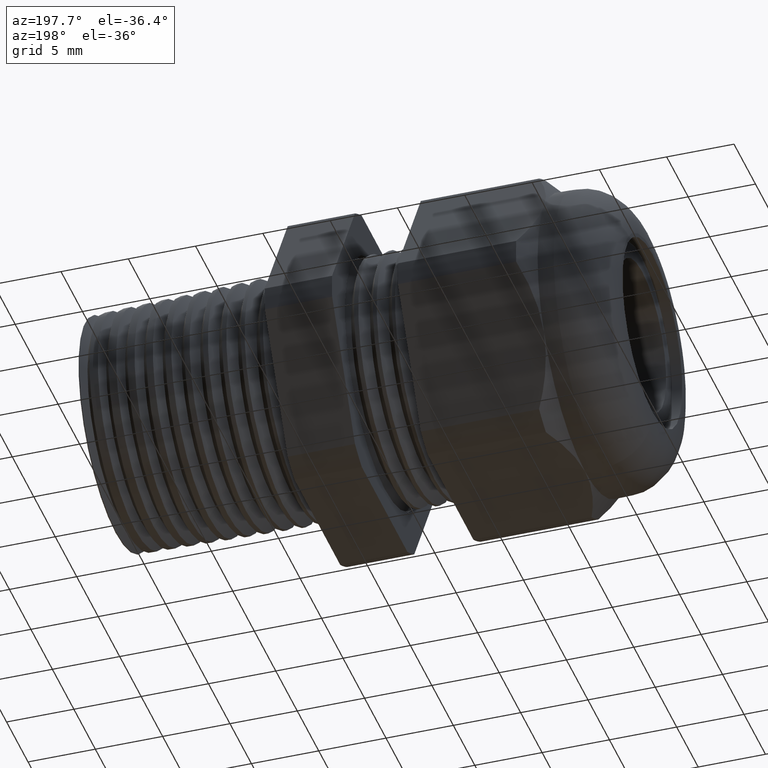
[diagram: clean part render]
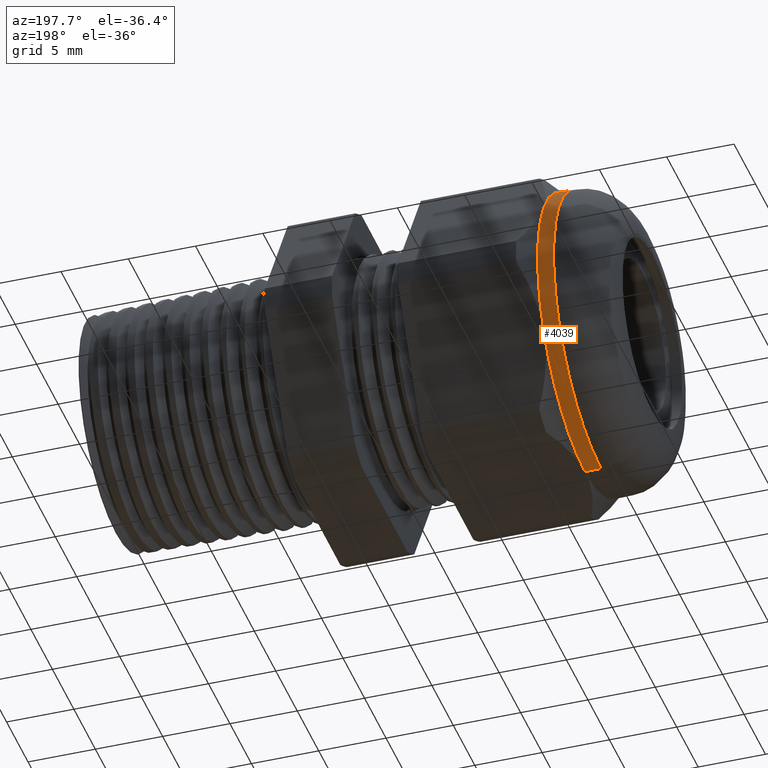
[diagram: same view with one face highlighted and labeled with its STEP entity id]
A machine part, auxiliary view. The second image highlights one B-rep face of the part: STEP entity #4039.
In plain terms, the highlighted cylindrical surface (partial cylindrical patch) has radius 11.049 mm, axis along (1, 0, 0).
Its self-contained STEP definition (entity closure, byte-faithful):
#840 = EDGE_CURVE ( 'NONE', #841, #842, #2678, .T. ) ;
#841 = VERTEX_POINT ( 'NONE', #2673 ) ;
#842 = VERTEX_POINT ( 'NONE', #2672 ) ;
#2672 = CARTESIAN_POINT ( 'NONE',  ( -1.139999999999999900, 5.327213576290986400E-017, 0.4350000000000000000 ) ) ;
#2673 = CARTESIAN_POINT ( 'NONE',  ( -1.139999999999999900, 0.0000000000000000000, -0.4350000000000000000 ) ) ;
#2674 = DIRECTION ( 'NONE',  ( 0.0000000000000000000, 0.0000000000000000000, 1.000000000000000000 ) ) ;
#2675 = DIRECTION ( 'NONE',  ( 1.000000000000000000, 0.0000000000000000000, 0.0000000000000000000 ) ) ;
#2676 = CARTESIAN_POINT ( 'NONE',  ( -1.139999999999999900, 0.0000000000000000000, 0.0000000000000000000 ) ) ;
#2677 = AXIS2_PLACEMENT_3D ( 'NONE', #2676, #2675, #2674 ) ;
#2678 = CIRCLE ( 'NONE', #2677, 0.4350000000000000000 ) ;
#3450 = DIRECTION ( 'NONE',  ( 0.0000000000000000000, 0.0000000000000000000, -1.000000000000000000 ) ) ;
#3451 = DIRECTION ( 'NONE',  ( 1.000000000000000000, 0.0000000000000000000, 0.0000000000000000000 ) ) ;
#3452 = CARTESIAN_POINT ( 'NONE',  ( -1.093149606299212500, 0.0000000000000000000, 0.0000000000000000000 ) ) ;
#3453 = AXIS2_PLACEMENT_3D ( 'NONE', #3452, #3451, #3450 ) ;
#3454 = CIRCLE ( 'NONE', #3453, 0.4350000000000000000 ) ;
#3455 = CARTESIAN_POINT ( 'NONE',  ( -1.093149606299212500, 0.3767210506462309600, 0.2175000000000001100 ) ) ;
#3456 = DIRECTION ( 'NONE',  ( 1.000000000000000000, 0.0000000000000000000, 0.0000000000000000000 ) ) ;
#3457 = VECTOR ( 'NONE', #3456, 39.37007874015748100 ) ;
#3458 = CARTESIAN_POINT ( 'NONE',  ( 0.0000000000000000000, 5.327213576290986400E-017, 0.4350000000000000000 ) ) ;
#3459 = LINE ( 'NONE', #3458, #3457 ) ;
#3460 = CARTESIAN_POINT ( 'NONE',  ( -1.093149606299212500, 0.3767210506462310100, -0.2175000000000000800 ) ) ;
#3466 = CARTESIAN_POINT ( 'NONE',  ( -1.093149606299212500, 0.0000000000000000000, 0.4349999999999998900 ) ) ;
#3468 = DIRECTION ( 'NONE',  ( 0.0000000000000000000, 0.0000000000000000000, -1.000000000000000000 ) ) ;
#3469 = DIRECTION ( 'NONE',  ( 1.000000000000000000, 0.0000000000000000000, 0.0000000000000000000 ) ) ;
#3470 = CARTESIAN_POINT ( 'NONE',  ( -1.093149606299212500, 0.0000000000000000000, 0.0000000000000000000 ) ) ;
#3471 = AXIS2_PLACEMENT_3D ( 'NONE', #3470, #3469, #3468 ) ;
#3472 = CIRCLE ( 'NONE', #3471, 0.4350000000000000000 ) ;
#3635 = DIRECTION ( 'NONE',  ( 0.0000000000000000000, 0.0000000000000000000, -1.000000000000000000 ) ) ;
#3636 = DIRECTION ( 'NONE',  ( 1.000000000000000000, 0.0000000000000000000, 0.0000000000000000000 ) ) ;
#3637 = CARTESIAN_POINT ( 'NONE',  ( 0.0000000000000000000, 0.0000000000000000000, 0.0000000000000000000 ) ) ;
#3638 = AXIS2_PLACEMENT_3D ( 'NONE', #3637, #3636, #3635 ) ;
#3639 = CYLINDRICAL_SURFACE ( 'NONE', #3638, 0.4350000000000000000 ) ;
#3640 = FACE_OUTER_BOUND ( 'NONE', #3895, .T. ) ;
#3667 = CARTESIAN_POINT ( 'NONE',  ( -1.093149606299212500, 0.0000000000000000000, -0.4350000000000000500 ) ) ;
#3675 = DIRECTION ( 'NONE',  ( 1.000000000000000000, 0.0000000000000000000, 0.0000000000000000000 ) ) ;
#3676 = VECTOR ( 'NONE', #3675, 39.37007874015748100 ) ;
#3677 = CARTESIAN_POINT ( 'NONE',  ( 0.0000000000000000000, 0.0000000000000000000, -0.4350000000000000000 ) ) ;
#3678 = LINE ( 'NONE', #3677, #3676 ) ;
#3724 = DIRECTION ( 'NONE',  ( 0.0000000000000000000, 0.0000000000000000000, -1.000000000000000000 ) ) ;
#3725 = DIRECTION ( 'NONE',  ( 1.000000000000000000, 0.0000000000000000000, 0.0000000000000000000 ) ) ;
#3726 = CARTESIAN_POINT ( 'NONE',  ( -1.093149606299212500, 0.0000000000000000000, 0.0000000000000000000 ) ) ;
#3727 = AXIS2_PLACEMENT_3D ( 'NONE', #3726, #3725, #3724 ) ;
#3728 = CIRCLE ( 'NONE', #3727, 0.4350000000000000000 ) ;
#3887 = ORIENTED_EDGE ( 'NONE', *, *, #4059, .F. ) ;
#3891 = ORIENTED_EDGE ( 'NONE', *, *, #3892, .F. ) ;
#3892 = EDGE_CURVE ( 'NONE', #3903, #3906, #3472, .T. ) ;
#3895 = EDGE_LOOP ( 'NONE', ( #3909, #4041, #3900, #3891, #3887, #4055 ) ) ;
#3898 = VERTEX_POINT ( 'NONE', #3466 ) ;
#3900 = ORIENTED_EDGE ( 'NONE', *, *, #3907, .F. ) ;
#3903 = VERTEX_POINT ( 'NONE', #3460 ) ;
#3904 = EDGE_CURVE ( 'NONE', #842, #3898, #3459, .T. ) ;
#3906 = VERTEX_POINT ( 'NONE', #3455 ) ;
#3907 = EDGE_CURVE ( 'NONE', #3906, #3898, #3454, .T. ) ;
#3909 = ORIENTED_EDGE ( 'NONE', *, *, #840, .T. ) ;
#4039 = ADVANCED_FACE ( 'NONE', ( #3640 ), #3639, .T. ) ;
#4041 = ORIENTED_EDGE ( 'NONE', *, *, #3904, .T. ) ;
#4050 = EDGE_CURVE ( 'NONE', #841, #4056, #3678, .T. ) ;
#4055 = ORIENTED_EDGE ( 'NONE', *, *, #4050, .F. ) ;
#4056 = VERTEX_POINT ( 'NONE', #3667 ) ;
#4059 = EDGE_CURVE ( 'NONE', #4056, #3903, #3728, .T. ) ;